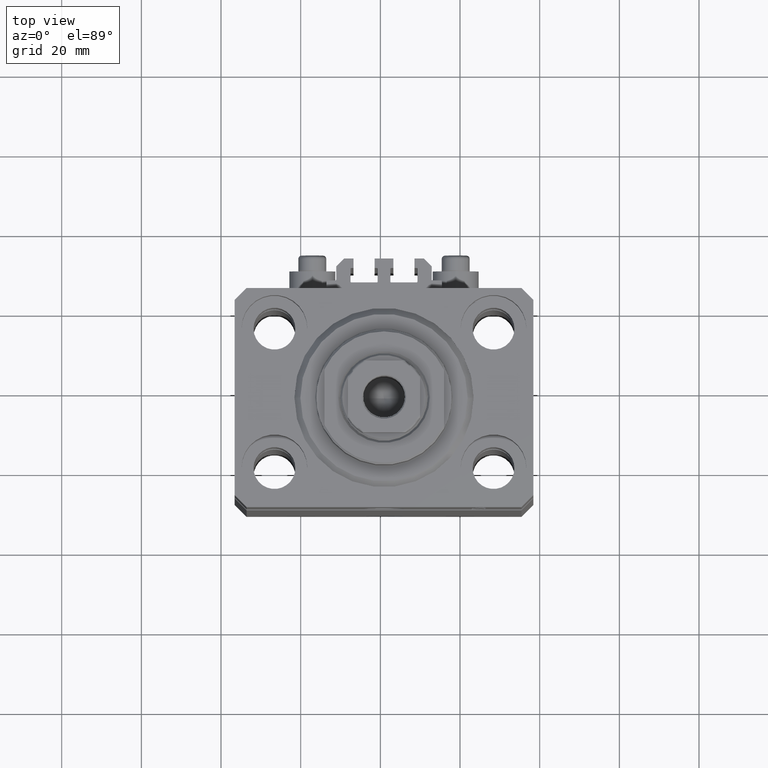
[diagram: clean part render]
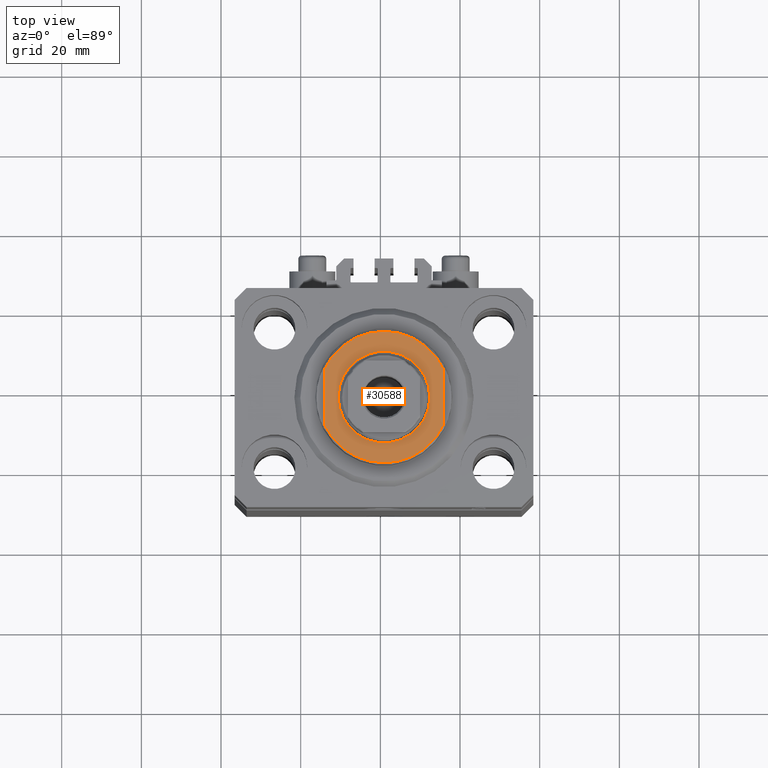
[diagram: same view with one face highlighted and labeled with its STEP entity id]
A machine part, top view. The second image highlights one B-rep face of the part: STEP entity #30588.
In plain terms, the highlighted planar face has unit normal (0, 0, 1).
Its self-contained STEP definition (entity closure, byte-faithful):
#390 = LINE ( 'NONE', #14141, #26731 ) ;
#1265 = DIRECTION ( 'NONE',  ( -0.000000000000000000, -0.000000000000000000, 1.000000000000000000 ) ) ;
#1307 = CARTESIAN_POINT ( 'NONE',  ( -11.49999999999998934, 0.000000000000000000, -8.000000000000000000 ) ) ;
#2245 = AXIS2_PLACEMENT_3D ( 'NONE', #30704, #20521, #27157 ) ;
#4649 = CARTESIAN_POINT ( 'NONE',  ( -15.00000000000000000, -42.42640687119285303, -8.000000000000000000 ) ) ;
#4938 = CARTESIAN_POINT ( 'NONE',  ( -15.00000000000000000, -6.873863542433783280, -8.000000000000000000 ) ) ;
#5428 = VERTEX_POINT ( 'NONE', #18474 ) ;
#5843 = DIRECTION ( 'NONE',  ( 0.000000000000000000, 0.000000000000000000, -1.000000000000000000 ) ) ;
#6482 = CARTESIAN_POINT ( 'NONE',  ( 11.49999999999998934, 1.408343819019454795E-15, -8.000000000000000000 ) ) ;
#8193 = DIRECTION ( 'NONE',  ( -0.000000000000000000, -1.000000000000000000, -0.000000000000000000 ) ) ;
#9157 = PLANE ( 'NONE',  #2245 ) ;
#9537 = EDGE_LOOP ( 'NONE', ( #18893, #19876 ) ) ;
#10977 = DIRECTION ( 'NONE',  ( -1.000000000000000000, 0.000000000000000000, 0.000000000000000000 ) ) ;
#11113 = VERTEX_POINT ( 'NONE', #12915 ) ;
#11606 = EDGE_CURVE ( 'NONE', #11113, #35986, #11940, .T. ) ;
#11766 = ORIENTED_EDGE ( 'NONE', *, *, #11606, .T. ) ;
#11909 = EDGE_CURVE ( 'NONE', #14323, #35986, #29978, .T. ) ;
#11940 = CIRCLE ( 'NONE', #17994, 16.50000000000000711 ) ;
#12245 = EDGE_LOOP ( 'NONE', ( #41620, #17699, #11766, #20405 ) ) ;
#12480 = FACE_OUTER_BOUND ( 'NONE', #12245, .T. ) ;
#12915 = CARTESIAN_POINT ( 'NONE',  ( 14.99999999999999645, -6.873863542433781504, -8.000000000000000000 ) ) ;
#14141 = CARTESIAN_POINT ( 'NONE',  ( 15.00000000000000000, -42.42640687119285303, -8.000000000000000000 ) ) ;
#14323 = VERTEX_POINT ( 'NONE', #42346 ) ;
#16038 = CARTESIAN_POINT ( 'NONE',  ( 0.000000000000000000, 0.000000000000000000, -8.000000000000000000 ) ) ;
#17698 = DIRECTION ( 'NONE',  ( 0.000000000000000000, -1.000000000000000000, -0.000000000000000000 ) ) ;
#17699 = ORIENTED_EDGE ( 'NONE', *, *, #43101, .T. ) ;
#17994 = AXIS2_PLACEMENT_3D ( 'NONE', #18907, #22700, #26482 ) ;
#18104 = DIRECTION ( 'NONE',  ( -1.000000000000000000, 0.000000000000000000, 0.000000000000000000 ) ) ;
#18474 = CARTESIAN_POINT ( 'NONE',  ( 14.99999999999999645, 6.873863542433781504, -8.000000000000000000 ) ) ;
#18893 = ORIENTED_EDGE ( 'NONE', *, *, #25207, .T. ) ;
#18907 = CARTESIAN_POINT ( 'NONE',  ( 0.000000000000000000, 0.000000000000000000, -8.000000000000000000 ) ) ;
#19107 = EDGE_CURVE ( 'NONE', #14323, #5428, #40051, .T. ) ;
#19513 = VECTOR ( 'NONE', #8193, 1000.000000000000000 ) ;
#19876 = ORIENTED_EDGE ( 'NONE', *, *, #42372, .T. ) ;
#19879 = CIRCLE ( 'NONE', #23669, 11.49999999999998934 ) ;
#20405 = ORIENTED_EDGE ( 'NONE', *, *, #11909, .F. ) ;
#20521 = DIRECTION ( 'NONE',  ( 0.000000000000000000, 0.000000000000000000, -1.000000000000000000 ) ) ;
#22700 = DIRECTION ( 'NONE',  ( 0.000000000000000000, 0.000000000000000000, -1.000000000000000000 ) ) ;
#23440 = AXIS2_PLACEMENT_3D ( 'NONE', #16038, #5843, #23617 ) ;
#23617 = DIRECTION ( 'NONE',  ( -1.000000000000000000, 0.000000000000000000, 0.000000000000000000 ) ) ;
#23669 = AXIS2_PLACEMENT_3D ( 'NONE', #40098, #1265, #10977 ) ;
#24761 = AXIS2_PLACEMENT_3D ( 'NONE', #46752, #32301, #18104 ) ;
#25207 = EDGE_CURVE ( 'NONE', #46145, #34367, #30023, .T. ) ;
#26482 = DIRECTION ( 'NONE',  ( -1.000000000000000000, 0.000000000000000000, 0.000000000000000000 ) ) ;
#26731 = VECTOR ( 'NONE', #17698, 1000.000000000000000 ) ;
#27157 = DIRECTION ( 'NONE',  ( -1.000000000000000000, 0.000000000000000000, -0.000000000000000000 ) ) ;
#29978 = LINE ( 'NONE', #4649, #19513 ) ;
#30023 = CIRCLE ( 'NONE', #24761, 11.49999999999998934 ) ;
#30588 = ADVANCED_FACE ( 'NONE', ( #41116, #12480 ), #9157, .T. ) ;
#30704 = CARTESIAN_POINT ( 'NONE',  ( 0.000000000000000000, 0.000000000000000000, -8.000000000000000000 ) ) ;
#32301 = DIRECTION ( 'NONE',  ( -0.000000000000000000, -0.000000000000000000, 1.000000000000000000 ) ) ;
#34367 = VERTEX_POINT ( 'NONE', #6482 ) ;
#35986 = VERTEX_POINT ( 'NONE', #4938 ) ;
#40051 = CIRCLE ( 'NONE', #23440, 16.50000000000000711 ) ;
#40098 = CARTESIAN_POINT ( 'NONE',  ( 0.000000000000000000, 0.000000000000000000, -8.000000000000000000 ) ) ;
#41116 = FACE_BOUND ( 'NONE', #9537, .T. ) ;
#41620 = ORIENTED_EDGE ( 'NONE', *, *, #19107, .T. ) ;
#42346 = CARTESIAN_POINT ( 'NONE',  ( -14.99999999999999645, 6.873863542433781504, -8.000000000000000000 ) ) ;
#42372 = EDGE_CURVE ( 'NONE', #34367, #46145, #19879, .T. ) ;
#43101 = EDGE_CURVE ( 'NONE', #5428, #11113, #390, .T. ) ;
#46145 = VERTEX_POINT ( 'NONE', #1307 ) ;
#46752 = CARTESIAN_POINT ( 'NONE',  ( 0.000000000000000000, 0.000000000000000000, -8.000000000000000000 ) ) ;